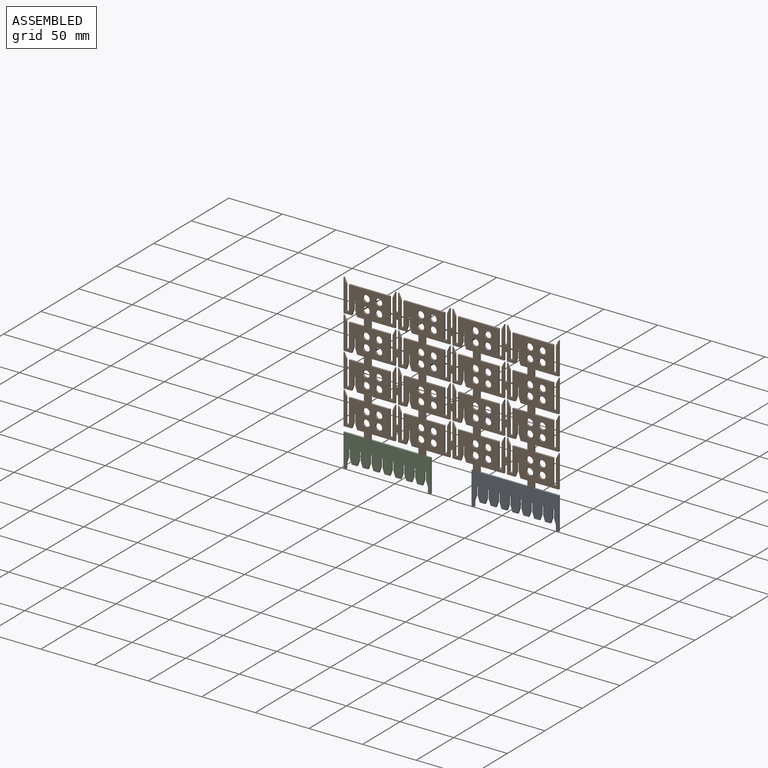
[diagram: assembled view]
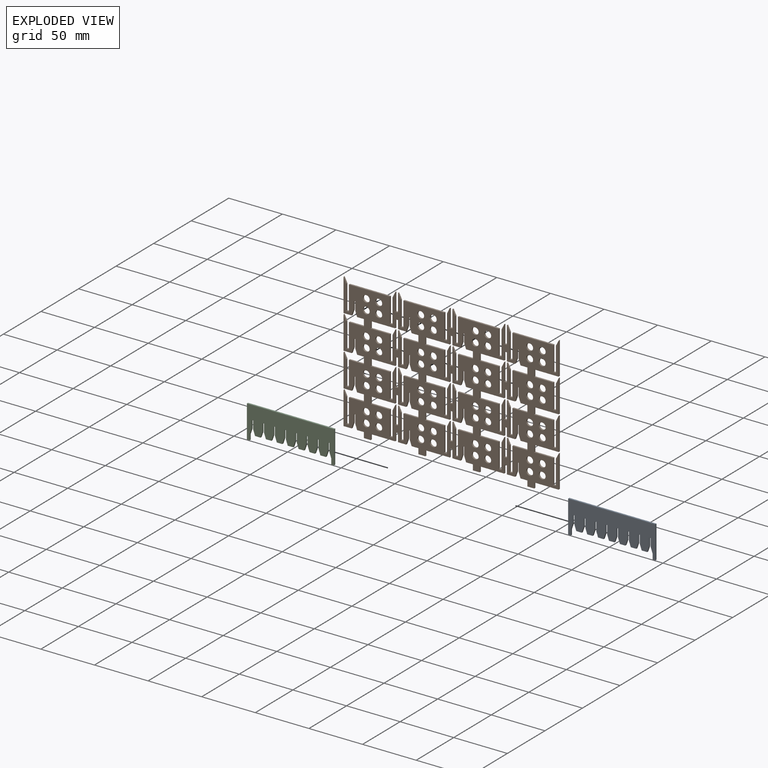
[diagram: exploded view]
GUIDED TOUR — MATED ASSEMBLY (Onshape document cbb8488f4214d6a0b4601f68, AutoMate assembly cbb8488f4214d6a0b4601f68_7ec9bebb5fc8c9039c8244a1_d43e5bda40886cf3c8755bc5_default)

This assembly has 3 components, labeled P0..P2 below (a component is one placed occurrence of a part; the same part can appear more than once), held together by 4 mates. A mate is a constraint between two components; its type names the relative motion it leaves free:
  PLANAR — leaves sliding in the plane through the listed point (normal = the listed direction) and rotation about that normal free.
Axis/direction vectors are unit vectors and 'through' points are millimeter coordinates, both in the assembly's world frame.

MATES
  1. PLANAR "Planar 4": P0 <-> P1, direction (1.000, 0.000, 0.000) through (107.25, 44.41, 128.27) mm
  2. PLANAR "Planar 2": P2 <-> P1, direction (-1.000, 0.000, 0.000) through (-93.41, 44.41, 128.27) mm
  3. PLANAR "Planar 1": P1 <-> P2, direction (0.000, 0.000, -1.000) through (-71.18, 44.41, 143.51) mm
  4. PLANAR "Planar 3": P0 <-> P1, direction (0.000, 0.000, 1.000) through (66.61, 44.41, 143.51) mm

ASSEMBLY ORDER
  1. P2 — the base component [order verified]
  2. P0 [order verified]
  3. P1 [order verified]
Order-tag legend:
  [order verified] — this step's position reverses a verified removal order: the component was checked to insert without passing through the ones already placed.

Of the 3 components, 2 carry the full construction recipe — the FeatureScript program that regenerates the part's solid from scratch; the rest are supplied as boundary geometry only.
Each toured component is shown spotlighted twice — in the assembled view, then in the exploded view, where a leader line traces a displaced component back to its assembled socket (saturated green if recipe-attached, orange if geometry-only; every other component desaturated gray) — followed by its recipe or geometry summary and the mates that hold it.
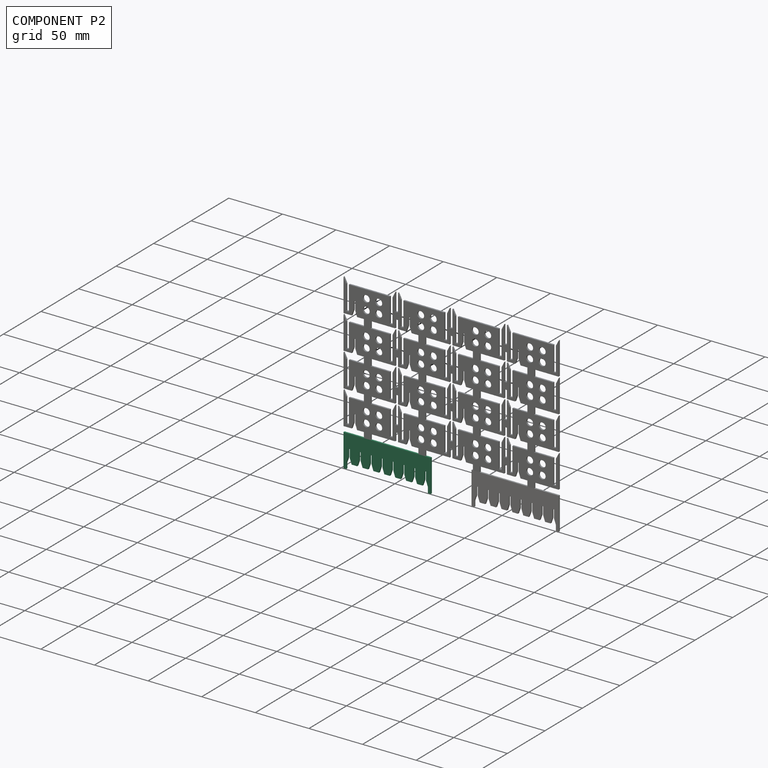
[diagram: component P2 — assembled]
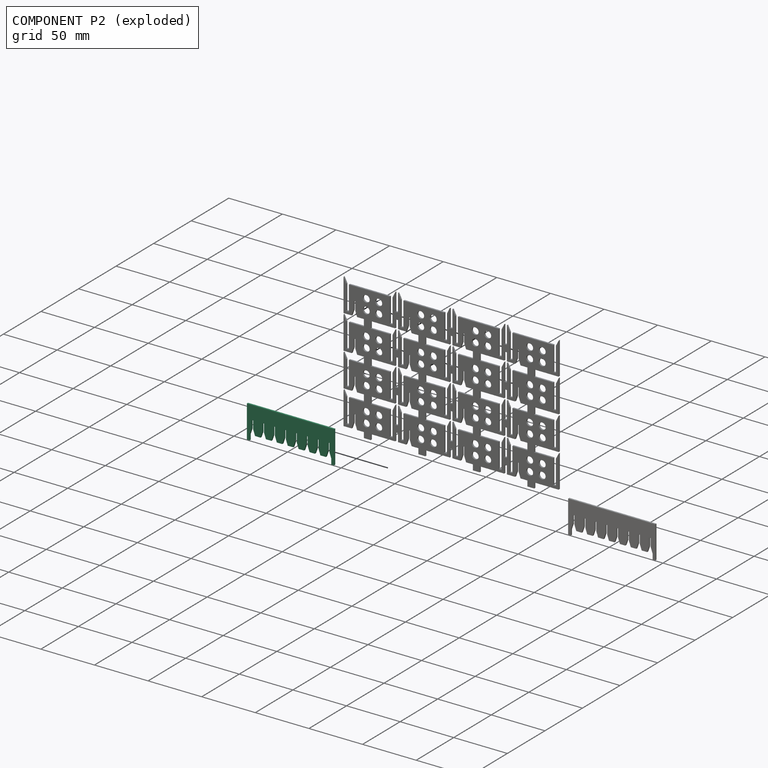
[diagram: component P2 — exploded]
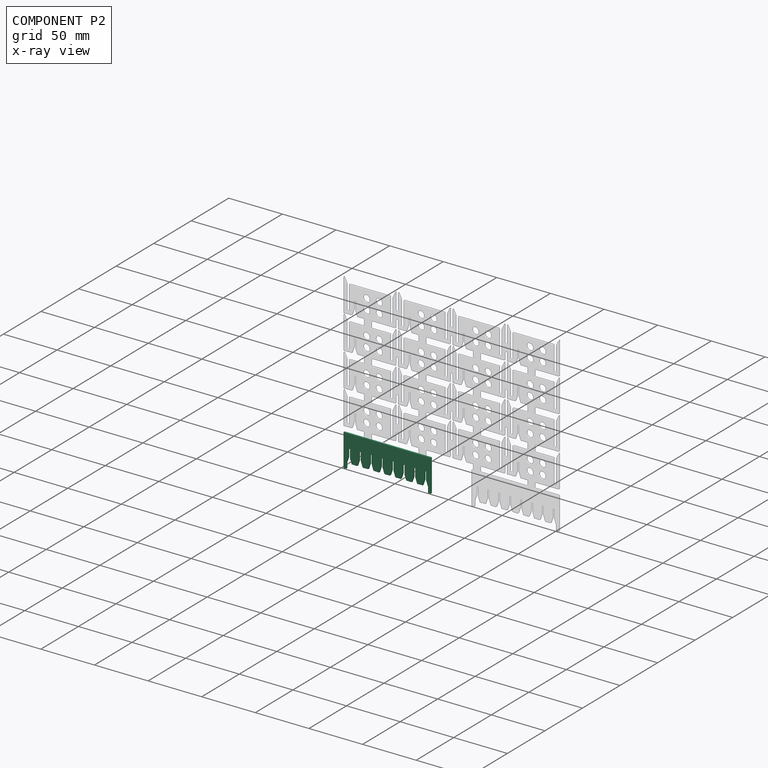
[diagram: component P2 — x-ray view]
COMPONENT P2 — same part as P0 (CADFS 00593432); its construction recipe is shown at P0.
Held by: PLANAR mate "Planar 2" to P1; PLANAR mate "Planar 1" to P1.
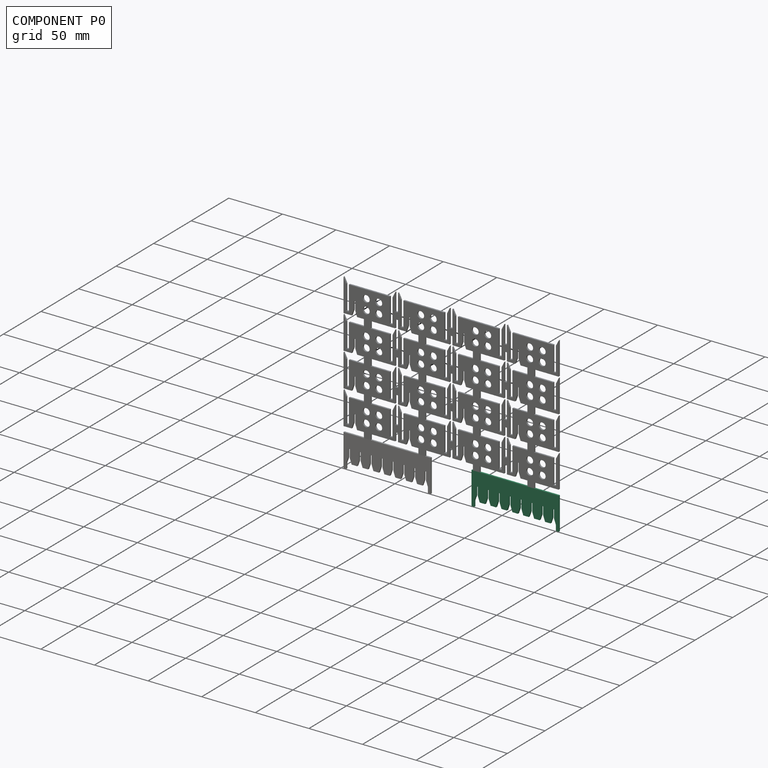
[diagram: component P0 — assembled]
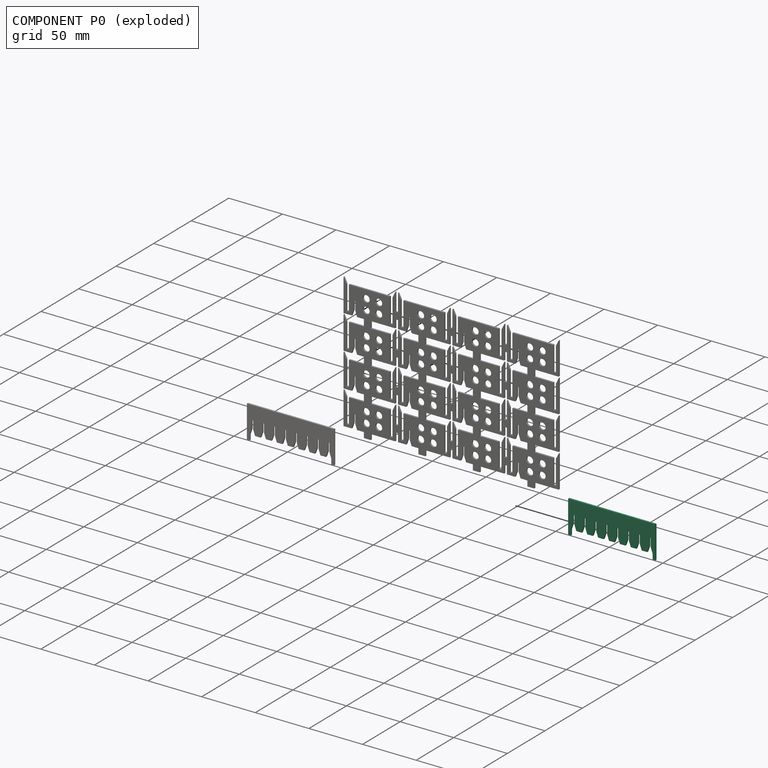
[diagram: component P0 — exploded]
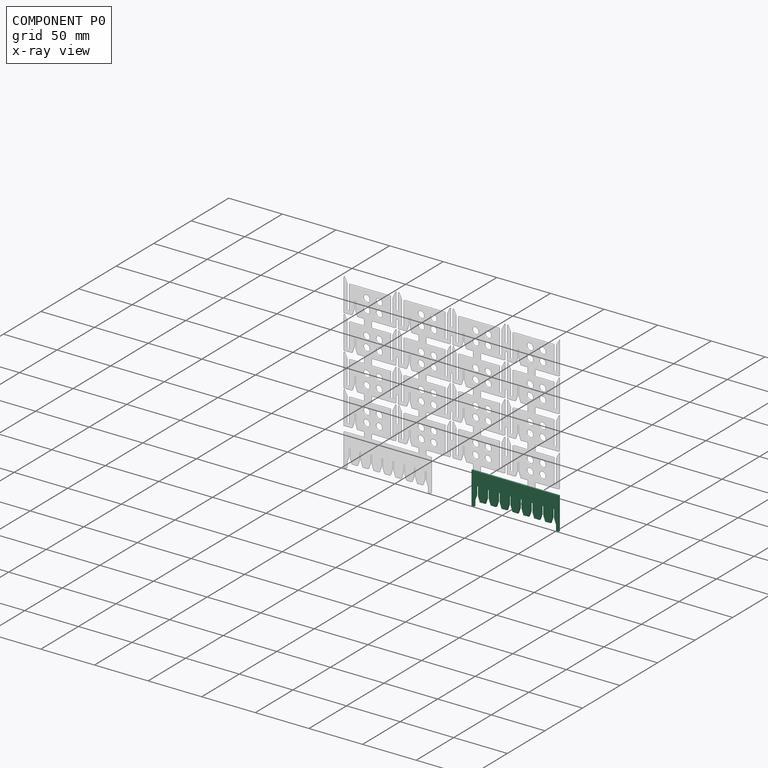
[diagram: component P0 — x-ray view]
COMPONENT P0 — recipe-attached (CADFS 00593432, mesh-verified: the recipe's output STEP matches this component's geometry to below the mesh-comparison resolution (tessellation chordal tolerance ~0.13 mm)).
Held by: PLANAR mate "Planar 4" to P1; PLANAR mate "Planar 3" to P1.
Construction recipe (FeatureScript — the CAD program that rebuilds this solid; sketch coordinates are in the units given by the * unit suffixes, e.g. mm):

FeatureScript 1511;
import(path : "onshape/std/geometry.fs", version : "1511.0");
import(path : "onshape/std/common.fs", version : "1511.0");
const mm = millimeter;
const VERTEX = EntityType.VERTEX;
const EDGE = EntityType.EDGE;
const FACE = EntityType.FACE;
const BODY = EntityType.BODY;
function v(x, y){return vector(x, y);}
function OD(order){return orderDisambiguation(order);}
function OSD(set){return originalSetDisambiguation(set);}
function TD(topology){return topologyDisambiguation(topology);}
function TDD(query){return trueDependencyDisambiguation(query);}
function sQuery(a, b, c) {return sketchEntityQuery(a, b, c);}

annotation { "Feature Type Name" : "Feature", "Feature Type Description" : "" }
export const myFeature = defineFeature(function(context is Context, id is Id, definition is map)
    precondition{}
    {
        {
            var Q0;
            Q0=qCreatedBy(makeId("Front.planeOp"),FACE);
            var sketch = newSketch(context, id + "F0", { "sketchPlane" : qUnion([Q0])});
            skLineSegment(sketch, "E0.bottom", {"start": v(0, 0) * mm, "end": v(152.4, 0) * mm});
            skLineSegment(sketch, "E0.top", {"start": v(0, 25.4) * mm, "end": v(152.4, 25.4) * mm});
            skLineSegment(sketch, "E0.left", {"start": v(0, 0) * mm, "end": v(0, 25.4) * mm});
            skLineSegment(sketch, "E0.right", {"start": v(152.4, 0) * mm, "end": v(152.4, 25.4) * mm});
            skSolve(sketch);
        }
        {
            var Q0;
            Q0 = qSketchRegion(id + "F0", true);
            extrude(context, id + "F1", {"entities" : qUnion([Q0]), "depth" : 1.59 * mm, "offsetDistance" : 25.4 * mm});
        }
        {
            var Q0;
            Q0=qCreatedBy(makeId("Front.planeOp"),FACE);
            var sketch = newSketch(context, id + "F2", { "sketchPlane" : qUnion([Q0])});
            skLineSegment(sketch, "E1", {"start": v(2.54, 0) * mm, "end": v(4.3, 5.08) * mm});
            skLineSegment(sketch, "E2", {"start": v(4.3, 5.08) * mm, "end": v(4.3, 12.7) * mm});
            skLineSegment(sketch, "E3", {"start": v(4.3, 12.7) * mm, "end": v(5.87, 12.7) * mm});
            skLineSegment(sketch, "E4", {"start": v(5.87, 12.7) * mm, "end": v(5.87, 5.08) * mm});
            skLineSegment(sketch, "E5", {"start": v(5.87, 5.08) * mm, "end": v(7.62, 0) * mm});
            skLineSegment(sketch, "E6", {"start": v(7.62, 0) * mm, "end": v(2.54, 0) * mm});
            skLineSegment(sketch, "E7", {"start": v(5.08, 12.7) * mm, "end": v(5.08, 0) * mm, "construction": true});
            skLineSegment(sketch, "E8.1.0.0", {"start": v(12.7, 0) * mm, "end": v(14.45, 5.08) * mm});
            skLineSegment(sketch, "E8.1.0.1", {"start": v(16.03, 12.7) * mm, "end": v(16.03, 5.08) * mm});
            skLineSegment(sketch, "E8.1.0.2", {"start": v(14.45, 5.08) * mm, "end": v(14.45, 12.7) * mm});
            skLineSegment(sketch, "E8.1.0.3", {"start": v(16.03, 5.08) * mm, "end": v(17.78, 0) * mm});
            skLineSegment(sketch, "E8.1.0.4", {"start": v(15.24, 12.7) * mm, "end": v(15.24, 0) * mm, "construction": true});
            skLineSegment(sketch, "E8.1.0.5", {"start": v(17.78, 0) * mm, "end": v(12.7, 0) * mm});
            skLineSegment(sketch, "E8.1.0.6", {"start": v(14.45, 12.7) * mm, "end": v(16.03, 12.7) * mm});
            skLineSegment(sketch, "E8.2.0.0", {"start": v(22.86, 0) * mm, "end": v(24.61, 5.08) * mm});
            skLineSegment(sketch, "E8.2.0.1", {"start": v(26.19, 12.7) * mm, "end": v(26.19, 5.08) * mm});
            skLineSegment(sketch, "E8.2.0.2", {"start": v(24.61, 5.08) * mm, "end": v(24.61, 12.7) * mm});
            skLineSegment(sketch, "E8.2.0.3", {"start": v(26.19, 5.08) * mm, "end": v(27.94, 0) * mm});
            skLineSegment(sketch, "E8.2.0.4", {"start": v(25.4, 12.7) * mm, "end": v(25.4, 0) * mm, "construction": true});
            skLineSegment(sketch, "E8.2.0.5", {"start": v(27.94, 0) * mm, "end": v(22.86, 0) * mm});
            skLineSegment(sketch, "E8.2.0.6", {"start": v(24.61, 12.7) * mm, "end": v(26.19, 12.7) * mm});
            skLineSegment(sketch, "E8.3.0.0", {"start": v(33.02, 0) * mm, "end": v(34.77, 5.08) * mm});
            skLineSegment(sketch, "E8.3.0.1", {"start": v(36.35, 12.7) * mm, "end": v(36.35, 5.08) * mm});
            skLineSegment(sketch, "E8.3.0.2", {"start": v(34.77, 5.08) * mm, "end": v(34.77, 12.7) * mm});
            skLineSegment(sketch, "E8.3.0.3", {"start": v(36.35, 5.08) * mm, "end": v(38.1, 0) * mm});
            skLineSegment(sketch, "E8.3.0.4", {"start": v(35.56, 12.7) * mm, "end": v(35.56, 0) * mm, "construction": true});
            skLineSegment(sketch, "E8.3.0.5", {"start": v(38.1, 0) * mm, "end": v(33.02, 0) * mm});
            skLineSegment(sketch, "E8.3.0.6", {"start": v(34.77, 12.7) * mm, "end": v(36.35, 12.7) * mm});
            skLineSegment(sketch, "E8.4.0.0", {"start": v(43.18, 0) * mm, "end": v(44.93, 5.08) * mm});
            skLineSegment(sketch, "E8.4.0.1", {"start": v(46.5, 12.7) * mm, "end": v(46.5, 5.08) * mm});
            skLineSegment(sketch, "E8.4.0.2", {"start": v(44.93, 5.08) * mm, "end": v(44.93, 12.7) * mm});
            skLineSegment(sketch, "E8.4.0.3", {"start": v(46.5, 5.08) * mm, "end": v(48.26, 0) * mm});
            skLineSegment(sketch, "E8.4.0.4", {"start": v(45.72, 12.7) * mm, "end": v(45.72, 0) * mm, "construction": true});
            skLineSegment(sketch, "E8.4.0.5", {"start": v(48.26, 0) * mm, "end": v(43.18, 0) * mm});
            skLineSegment(sketch, "E8.4.0.6", {"start": v(44.93, 12.7) * mm, "end": v(46.5, 12.7) * mm});
            skLineSegment(sketch, "E8.5.0.0", {"start": v(53.34, 0) * mm, "end": v(55.1, 5.08) * mm});
            skLineSegment(sketch, "E8.5.0.1", {"start": v(56.67, 12.7) * mm, "end": v(56.67, 5.08) * mm});
            skLineSegment(sketch, "E8.5.0.2", {"start": v(55.1, 5.08) * mm, "end": v(55.1, 12.7) * mm});
            skLineSegment(sketch, "E8.5.0.3", {"start": v(56.67, 5.08) * mm, "end": v(58.42, 0) * mm});
            skLineSegment(sketch, "E8.5.0.4", {"start": v(55.88, 12.7) * mm, "end": v(55.88, 0) * mm, "construction": true});
            skLineSegment(sketch, "E8.5.0.5", {"start": v(58.42, 0) * mm, "end": v(53.34, 0) * mm});
            skLineSegment(sketch, "E8.5.0.6", {"start": v(55.1, 12.7) * mm, "end": v(56.67, 12.7) * mm});
            skLineSegment(sketch, "E8.direction1", {"start": v(2.54, 0) * mm, "end": v(12.7, 0) * mm, "construction": true});
            skLineSegment(sketch, "E9.0.6.0", {"start": v(63.5, 0) * mm, "end": v(65.25, 5.08) * mm});
            skLineSegment(sketch, "E9.3.6.0", {"start": v(66.83, 12.7) * mm, "end": v(66.83, 5.08) * mm});
            skLineSegment(sketch, "E9.6.6.0", {"start": v(65.25, 5.08) * mm, "end": v(65.25, 12.7) * mm});
            skLineSegment(sketch, "E9.9.6.0", {"start": v(66.83, 5.08) * mm, "end": v(68.58, 0) * mm});
            skLineSegment(sketch, "E9.12.6.0", {"start": v(66.04, 12.7) * mm, "end": v(66.04, 0) * mm, "construction": true});
            skLineSegment(sketch, "E9.15.6.0", {"start": v(68.58, 0) * mm, "end": v(63.5, 0) * mm});
            skLineSegment(sketch, "E9.18.6.0", {"start": v(65.25, 12.7) * mm, "end": v(66.83, 12.7) * mm});
            skLineSegment(sketch, "E9.0.7.0", {"start": v(73.66, 0) * mm, "end": v(75.41, 5.08) * mm});
            skLineSegment(sketch, "E9.3.7.0", {"start": v(76.99, 12.7) * mm, "end": v(76.99, 5.08) * mm});
            skLineSegment(sketch, "E9.6.7.0", {"start": v(75.41, 5.08) * mm, "end": v(75.41, 12.7) * mm});
            skLineSegment(sketch, "E9.9.7.0", {"start": v(76.99, 5.08) * mm, "end": v(78.74, 0) * mm});
            skLineSegment(sketch, "E9.12.7.0", {"start": v(76.2, 12.7) * mm, "end": v(76.2, 0) * mm, "construction": true});
            skLineSegment(sketch, "E9.15.7.0", {"start": v(78.74, 0) * mm, "end": v(73.66, 0) * mm});
            skLineSegment(sketch, "E9.18.7.0", {"start": v(75.41, 12.7) * mm, "end": v(76.99, 12.7) * mm});
            skSolve(sketch);
        }
        {
            var Q0;
            Q0 = qSketchRegion(id + "F2", true);
            extrude(context, id + "F3", {"entities" : qUnion([Q0]), "operationType" : NewBodyOperationType.REMOVE, "endBound" : BoundingType.THROUGH_ALL, "depth" : 25.4 * mm, "offsetDistance" : 25.4 * mm});
        }
        {
            var Q0;
            Q0=makeQuery(id+"F1.opExtrude","CAP_FACE",FACE,{"disambiguationData":[OSD([sQuery(id+"F0.wireOp",EDGE,"E0.bottom"),sQuery(id+"F0.wireOp",EDGE,"E0.top"),sQuery(id+"F0.wireOp",EDGE,"E0.left"),sQuery(id+"F0.wireOp",EDGE,"E0.right")])],"isStart":false});
            var sketch = newSketch(context, id + "F4", { "sketchPlane" : qUnion([Q0])});
            skLineSegment(sketch, "E10.bottom", {"start": v(152.4, 25.4) * mm, "end": v(81.28, 25.4) * mm});
            skLineSegment(sketch, "E10.top", {"start": v(152.4, 0) * mm, "end": v(81.28, 0) * mm});
            skLineSegment(sketch, "E10.left", {"start": v(152.4, 25.4) * mm, "end": v(152.4, 0) * mm});
            skLineSegment(sketch, "E10.right", {"start": v(81.28, 25.4) * mm, "end": v(81.28, 0) * mm});
            skSolve(sketch);
        }
        {
            var Q0;
            Q0 = qSketchRegion(id + "F4", true);
            extrude(context, id + "F5", {"entities" : qUnion([Q0]), "operationType" : NewBodyOperationType.REMOVE, "endBound" : BoundingType.THROUGH_ALL, "oppositeDirection" : true, "depth" : 25.4 * mm, "offsetDistance" : 25.4 * mm});
        }
        {
            var Q0;
            Q0=makeQuery(id+"F1.opExtrude","CAP_FACE",FACE,{"disambiguationData":[OSD([sQuery(id+"F0.wireOp",EDGE,"E0.bottom"),sQuery(id+"F0.wireOp",EDGE,"E0.top"),sQuery(id+"F0.wireOp",EDGE,"E0.left"),sQuery(id+"F0.wireOp",EDGE,"E0.right")])],"isStart":false});
            var sketch = newSketch(context, id + "F6", { "sketchPlane" : qUnion([Q0])});
            skLineSegment(sketch, "E11.bottom", {"start": v(0, 0) * mm, "end": v(2.54, 0) * mm});
            skLineSegment(sketch, "E11.top", {"start": v(0, -5.08) * mm, "end": v(2.54, -5.08) * mm});
            skLineSegment(sketch, "E11.left", {"start": v(0, 0) * mm, "end": v(0, -5.08) * mm});
            skLineSegment(sketch, "E11.right", {"start": v(2.54, 0) * mm, "end": v(2.54, -5.08) * mm});
            skLineSegment(sketch, "E12.bottom", {"start": v(81.28, 0) * mm, "end": v(78.74, 0) * mm});
            skLineSegment(sketch, "E12.top", {"start": v(81.28, -5.08) * mm, "end": v(78.74, -5.08) * mm});
            skLineSegment(sketch, "E12.left", {"start": v(81.28, 0) * mm, "end": v(81.28, -5.08) * mm});
            skLineSegment(sketch, "E12.right", {"start": v(78.74, 0) * mm, "end": v(78.74, -5.08) * mm});
            skSolve(sketch);
        }
        {
            var Q0;
            Q0 = qSketchRegion(id + "F6", true);
            var Q1;
            Q1=makeQuery(id+"F1.opExtrude","CAP_FACE",FACE,{"disambiguationData":[OSD([sQuery(id+"F0.wireOp",EDGE,"E0.bottom"),sQuery(id+"F0.wireOp",EDGE,"E0.top"),sQuery(id+"F0.wireOp",EDGE,"E0.left"),sQuery(id+"F0.wireOp",EDGE,"E0.right")])],"isStart":true});
            extrude(context, id + "F7", {"entities" : qUnion([Q0]), "operationType" : NewBodyOperationType.ADD, "endBound" : BoundingType.UP_TO_SURFACE, "oppositeDirection" : true, "depth" : 25.4 * mm, "endBoundEntityFace" : qUnion([Q1]), "offsetDistance" : 25.4 * mm});
        }
    });
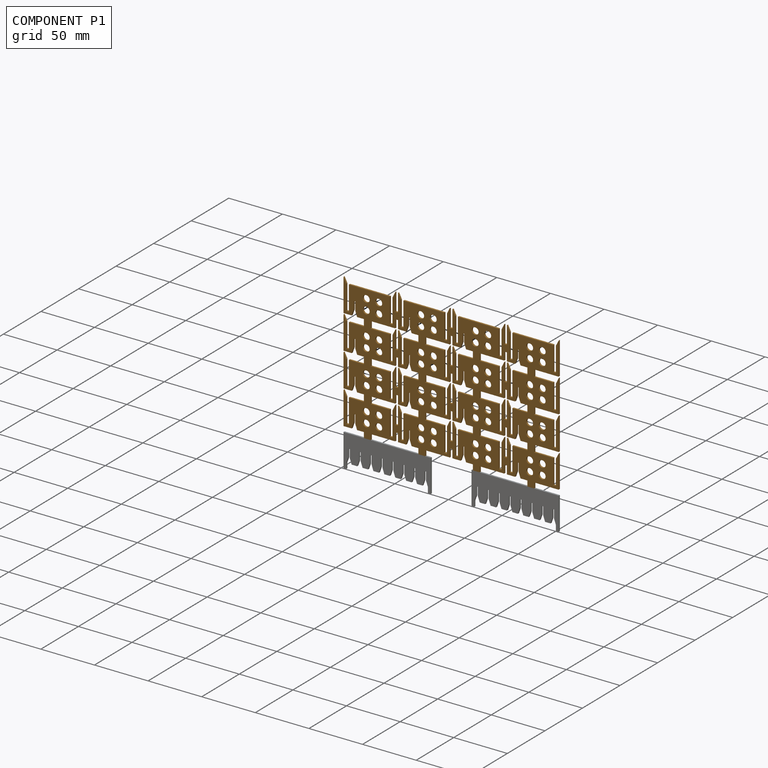
[diagram: component P1 — assembled]
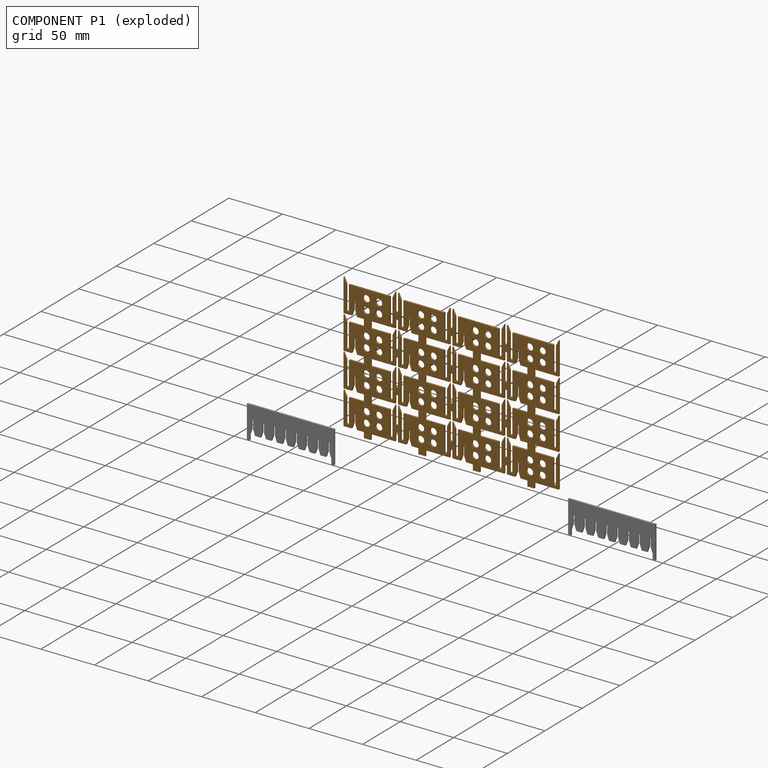
[diagram: component P1 — exploded]
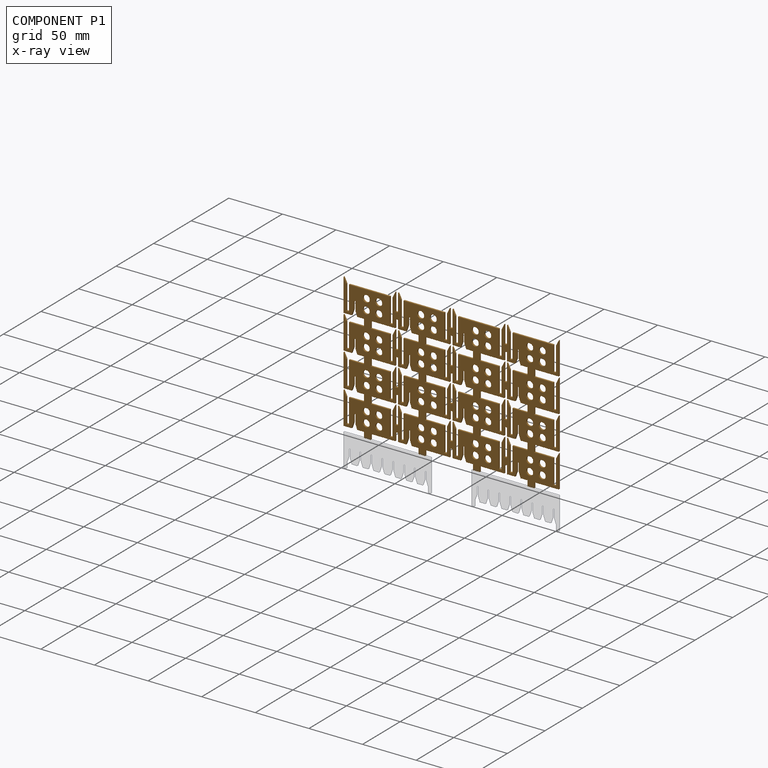
[diagram: component P1 — x-ray view]
COMPONENT P1 — geometry summary (no construction recipe available for this part):
  bounding box: 200.7 x 130.8 x 1.6 mm
  B-rep topology: 1 solid, 466 faces, 2912 edges
  volume: 25842 mm^3 (62% of its bounding box)
  symmetry: mirror-symmetric across its y mid-plane
Held by: PLANAR mate "Planar 4" to P0; PLANAR mate "Planar 2" to P2; PLANAR mate "Planar 1" to P2; PLANAR mate "Planar 3" to P0.
PROVENANCE & LICENSES
Assembly (occurrences, transforms, mates, per-part STEP geometry): AutoMate dataset, Zenodo record 7776208, CC0.
Construction recipes: CADFS (HuggingFace VladPyatov/CADFS, CC-BY-4.0, layered over the ABC dataset), FeatureScript reconstruction programs keyed by ABC model id.
Join: ABC meta listings map ABC model id -> Onshape documentId; within a shared document, parts are matched by geometric signature (bounding-box dims + volume at 0.1% relative tolerance, exact B-rep face/solid counts).
Verification: 2 of this assembly's 3 components carry a recipe attachment, and every attachment is mesh-verified: the CADFS STEP and the AutoMate member STEP were compared as meshes in their shared local frame (symmetric sampled-point-to-mesh distance); worst across the 2 attachments: below the mesh-comparison resolution (tessellation chordal tolerance ~0.13 mm) on a 87 mm part.
Renders: orthographic iso camera (az 35 / el 25); the floor grid conveys scale (grid pitch printed in each image; no ruler). In the exploded view each component is displaced by its stored offset vector: the offsets alone carry the explosion direction (mate normal/axis signs are not orientation cues and do not encode it), and separation distances are assigned per mate-chain, not proportionally to assembly-order depth.
